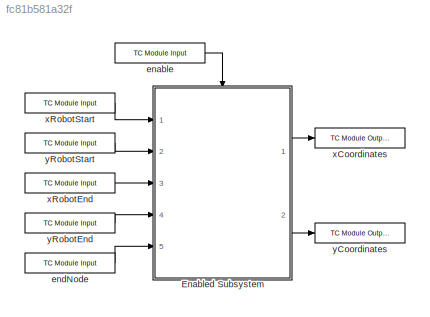
MODEL slx_fc81b581a32f
KIND model
CONFIG AbsTol = auto
CONFIG EnableMultiTasking = off
CONFIG FixedStep = 0.020
CONFIG MaxStep = auto
CONFIG MinStep = auto
CONFIG RelTol = 1e-3
CONFIG SampleTimeConstraint = Unconstrained
CONFIG SolverName = ode1
CONFIG StartTime = 0.0
CONFIG StopTime = Inf
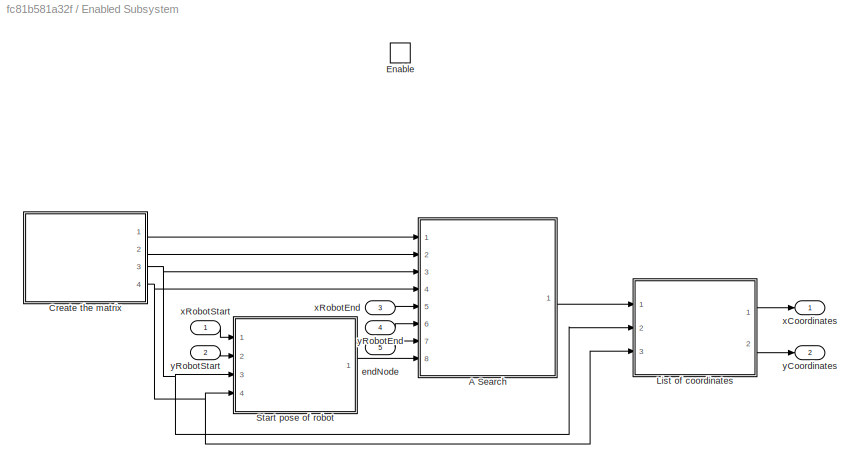
BLOCK [SubSystem] Enabled Subsystem
  Ports = [5, 2, 1]
  RequestExecContextInheritance = off
  TreatAsAtomicUnit = on
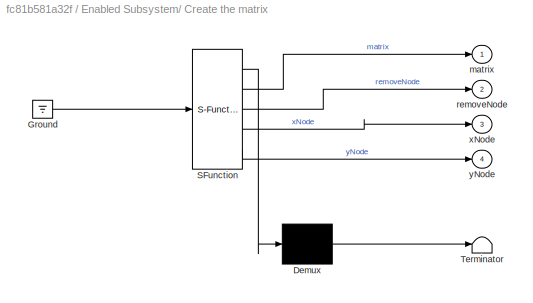
BLOCK [SubSystem] Enabled Subsystem/ Create the matrix
  ErrorFcn = Stateflow.Translate.translate
  PermitHierarchicalResolution = ExplicitOnly
  Ports = [0, 4]
  RequestExecContextInheritance = off
  SFBlockType = MATLAB Function
  TreatAsAtomicUnit = on
BLOCK [Demux] Enabled Subsystem/ Create the matrix/ Demux 
  Outputs = 1
  Ports = [1, 1]
BLOCK [Ground] Enabled Subsystem/ Create the matrix/ Ground 
BLOCK [S-Function] Enabled Subsystem/ Create the matrix/ SFunction 
  EnableBusSupport = on
  FunctionName = sf_sfun
  PortCounts = [1 5]
  Ports = [1, 5]
  SFcnIsStateOwnerBlock = off
  SFunctionDeploymentMode = off
  Tag = Stateflow S-Function 2
BLOCK [Terminator] Enabled Subsystem/ Create the matrix/ Terminator 
BLOCK [Outport] Enabled Subsystem/ Create the matrix/matrix
BLOCK [Outport] Enabled Subsystem/ Create the matrix/removeNode
  Port = 2
BLOCK [Outport] Enabled Subsystem/ Create the matrix/xNode
  Port = 3
BLOCK [Outport] Enabled Subsystem/ Create the matrix/yNode
  Port = 4
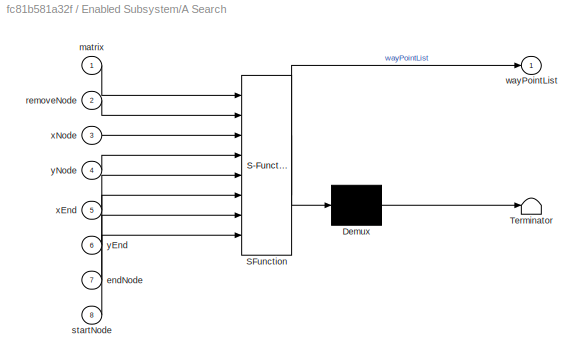
BLOCK [SubSystem] Enabled Subsystem/A Search
  ErrorFcn = Stateflow.Translate.translate
  PermitHierarchicalResolution = ExplicitOnly
  Ports = [8, 1]
  RequestExecContextInheritance = off
  SFBlockType = MATLAB Function
  TreatAsAtomicUnit = on
BLOCK [Demux] Enabled Subsystem/A Search/ Demux 
  Outputs = 1
  Ports = [1, 1]
BLOCK [S-Function] Enabled Subsystem/A Search/ SFunction 
  EnableBusSupport = on
  FunctionName = sf_sfun
  PortCounts = [8 2]
  Ports = [8, 2]
  SFcnIsStateOwnerBlock = off
  SFunctionDeploymentMode = off
  Tag = Stateflow S-Function 3
BLOCK [Terminator] Enabled Subsystem/A Search/ Terminator 
BLOCK [Inport] Enabled Subsystem/A Search/endNode
  Port = 7
BLOCK [Inport] Enabled Subsystem/A Search/matrix
BLOCK [Inport] Enabled Subsystem/A Search/removeNode
  Port = 2
BLOCK [Inport] Enabled Subsystem/A Search/startNode
  Port = 8
BLOCK [Outport] Enabled Subsystem/A Search/wayPointList
BLOCK [Inport] Enabled Subsystem/A Search/xEnd
  Port = 5
BLOCK [Inport] Enabled Subsystem/A Search/xNode
  Port = 3
BLOCK [Inport] Enabled Subsystem/A Search/yEnd
  Port = 6
BLOCK [Inport] Enabled Subsystem/A Search/yNode
  Port = 4
BLOCK [EnablePort] Enabled Subsystem/Enable
  Ports = []
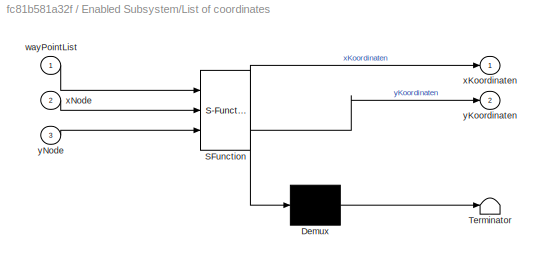
BLOCK [SubSystem] Enabled Subsystem/List of coordinates
  ErrorFcn = Stateflow.Translate.translate
  PermitHierarchicalResolution = ExplicitOnly
  Ports = [3, 2]
  RequestExecContextInheritance = off
  SFBlockType = MATLAB Function
  TreatAsAtomicUnit = on
BLOCK [Demux] Enabled Subsystem/List of coordinates/ Demux 
  Outputs = 1
  Ports = [1, 1]
BLOCK [S-Function] Enabled Subsystem/List of coordinates/ SFunction 
  EnableBusSupport = on
  FunctionName = sf_sfun
  PortCounts = [3 3]
  Ports = [3, 3]
  SFcnIsStateOwnerBlock = off
  SFunctionDeploymentMode = off
  Tag = Stateflow S-Function 4
BLOCK [Terminator] Enabled Subsystem/List of coordinates/ Terminator 
BLOCK [Inport] Enabled Subsystem/List of coordinates/wayPointList
BLOCK [Outport] Enabled Subsystem/List of coordinates/xKoordinaten
BLOCK [Inport] Enabled Subsystem/List of coordinates/xNode
  Port = 2
BLOCK [Outport] Enabled Subsystem/List of coordinates/yKoordinaten
  Port = 2
BLOCK [Inport] Enabled Subsystem/List of coordinates/yNode
  Port = 3
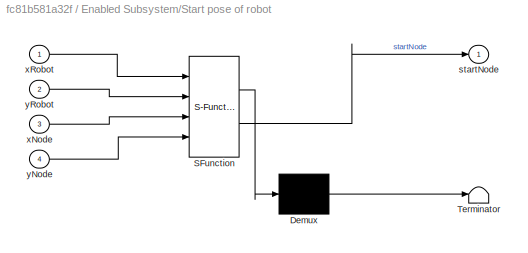
BLOCK [SubSystem] Enabled Subsystem/Start pose of robot
  ErrorFcn = Stateflow.Translate.translate
  PermitHierarchicalResolution = ExplicitOnly
  Ports = [4, 1]
  RequestExecContextInheritance = off
  SFBlockType = MATLAB Function
  TreatAsAtomicUnit = on
BLOCK [Demux] Enabled Subsystem/Start pose of robot/ Demux 
  Outputs = 1
  Ports = [1, 1]
BLOCK [S-Function] Enabled Subsystem/Start pose of robot/ SFunction 
  EnableBusSupport = on
  FunctionName = sf_sfun
  PortCounts = [4 2]
  Ports = [4, 2]
  SFcnIsStateOwnerBlock = off
  SFunctionDeploymentMode = off
  Tag = Stateflow S-Function 1
BLOCK [Terminator] Enabled Subsystem/Start pose of robot/ Terminator 
BLOCK [Outport] Enabled Subsystem/Start pose of robot/startNode
BLOCK [Inport] Enabled Subsystem/Start pose of robot/xNode
  Port = 3
BLOCK [Inport] Enabled Subsystem/Start pose of robot/xRobot
BLOCK [Inport] Enabled Subsystem/Start pose of robot/yNode
  Port = 4
BLOCK [Inport] Enabled Subsystem/Start pose of robot/yRobot
  Port = 2
BLOCK [Inport] Enabled Subsystem/endNode
  Port = 5
BLOCK [Outport] Enabled Subsystem/xCoordinates
BLOCK [Inport] Enabled Subsystem/xRobotEnd
  Port = 3
BLOCK [Inport] Enabled Subsystem/xRobotStart
BLOCK [Outport] Enabled Subsystem/yCoordinates
  Port = 2
BLOCK [Inport] Enabled Subsystem/yRobotEnd
  Port = 4
BLOCK [Inport] Enabled Subsystem/yRobotStart
  Port = 2
BLOCK [Reference] enable  REF=TcTargetLib/TC Module Input
  Ports = [0, 1]
  SourceBlock = TcTargetLib/TC Module Input
  SourceProductName = Beckhoff TwinCAT Target
  SourceType = TC Module Input
BLOCK [Reference] endNode  REF=TcTargetLib/TC Module Input
  Ports = [0, 1]
  SourceBlock = TcTargetLib/TC Module Input
  SourceProductName = Beckhoff TwinCAT Target
  SourceType = TC Module Input
BLOCK [Reference] xCoordinates  REF=TcTargetLib/TC Module Output
  Ports = [1]
  SourceBlock = TcTargetLib/TC Module Output
  SourceProductName = Beckhoff TwinCAT Target
  SourceType = TC Module Output
BLOCK [Reference] xRobotEnd  REF=TcTargetLib/TC Module Input
  Ports = [0, 1]
  SourceBlock = TcTargetLib/TC Module Input
  SourceProductName = Beckhoff TwinCAT Target
  SourceType = TC Module Input
BLOCK [Reference] xRobotStart  REF=TcTargetLib/TC Module Input
  Ports = [0, 1]
  SourceBlock = TcTargetLib/TC Module Input
  SourceProductName = Beckhoff TwinCAT Target
  SourceType = TC Module Input
BLOCK [Reference] yCoordinates  REF=TcTargetLib/TC Module Output
  Ports = [1]
  SourceBlock = TcTargetLib/TC Module Output
  SourceProductName = Beckhoff TwinCAT Target
  SourceType = TC Module Output
BLOCK [Reference] yRobotEnd  REF=TcTargetLib/TC Module Input
  Ports = [0, 1]
  SourceBlock = TcTargetLib/TC Module Input
  SourceProductName = Beckhoff TwinCAT Target
  SourceType = TC Module Input
BLOCK [Reference] yRobotStart  REF=TcTargetLib/TC Module Input
  Ports = [0, 1]
  SourceBlock = TcTargetLib/TC Module Input
  SourceProductName = Beckhoff TwinCAT Target
  SourceType = TC Module Input
LINE Enabled Subsystem/ Create the matrix:1 -> Enabled Subsystem/A Search:1
LINE Enabled Subsystem/ Create the matrix:2 -> Enabled Subsystem/A Search:2
NET Enabled Subsystem/ Create the matrix:3 -> Enabled Subsystem/A Search:3, Enabled Subsystem/List of coordinates:2, Enabled Subsystem/Start pose of robot:3
NET Enabled Subsystem/ Create the matrix:4 -> Enabled Subsystem/A Search:4, Enabled Subsystem/List of coordinates:3, Enabled Subsystem/Start pose of robot:4
LINE Enabled Subsystem/A Search:1 -> Enabled Subsystem/List of coordinates:1
LINE Enabled Subsystem/List of coordinates:1 -> Enabled Subsystem/xCoordinates:1
LINE Enabled Subsystem/List of coordinates:2 -> Enabled Subsystem/yCoordinates:1
LINE Enabled Subsystem/Start pose of robot:1 -> Enabled Subsystem/A Search:8
LINE Enabled Subsystem/endNode:1 -> Enabled Subsystem/A Search:7
LINE Enabled Subsystem/xRobotEnd:1 -> Enabled Subsystem/A Search:5
LINE Enabled Subsystem/xRobotStart:1 -> Enabled Subsystem/Start pose of robot:1
LINE Enabled Subsystem/yRobotEnd:1 -> Enabled Subsystem/A Search:6
LINE Enabled Subsystem/yRobotStart:1 -> Enabled Subsystem/Start pose of robot:2
LINE Enabled Subsystem:1 -> xCoordinates:1
LINE Enabled Subsystem:2 -> yCoordinates:1
LINE enable:1 -> Enabled Subsystem:enable
LINE endNode:1 -> Enabled Subsystem:5
LINE xRobotEnd:1 -> Enabled Subsystem:3
LINE xRobotStart:1 -> Enabled Subsystem:1
LINE yRobotEnd:1 -> Enabled Subsystem:4
LINE yRobotStart:1 -> Enabled Subsystem:2
note: NET lines group one-source signal fan-out (src -> all destinations, sorted); 1:1 wires keep LINE
CHART Enabled
Subsystem/Start pose of robot states=1 transitions=1
  STATE_LABEL 'eML_blk_kernel()'
  STATE_LABEL 'SCRIPT:\nfunction startNode= fcn(xRobot, yRobot, xNode, yNode)\n\nstartNode = 0;\nstartNodeArray = 0;\ndiff_x = zeros(size(xNode,1),1);\ndiff_y = zeros(size(yNode,1),1);\n\nfor i = 1:size(xNode,1)\n    diff_x(i) = abs(xRobot-xNode(i));\nend\n\nfor i = 1:size(yNode,1)\n    diff_y(i) = abs(yRobot-yNode(i));\nend\n\nxMin = min(diff_x);\nyMin = min(diff_y);\n\nxStart = find(diff_x == xMin);\nyStart = find(diff_y == yMin)...<+82ch>'
CHART Enabled
Subsystem/ Create the matrix states=1 transitions=1
  STATE_LABEL 'eML_blk_kernel()'
  STATE_LABEL 'SCRIPT:\nfunction [matrix, removeNode, xNode, yNode] = fcn()\n\nnumberOfNodes = 144;\nnumberOfColumns = 18;\nmatrix = zeros(numberOfNodes);\n\n% Verbindung zu relevanten Knoten\nfor i = 1:numberOfNodes\n    if i-1>0 && mod(i, numberOfColumns) ~= 1\n        matrix(i-1,i) = 1000;\n    end\n    if i+1<numberOfNodes+1 && mod(i,numberOfColumns) ~= 0\n        matrix(i+1,i)= 1000;\n    end\n    if i+numberOfColumns<num...<+1220ch>'
CHART Enabled
Subsystem/A Search states=1 transitions=1
  STATE_LABEL 'eML_blk_kernel()'
  STATE_LABEL 'SCRIPT:\nfunction wayPointList = fcn(matrix, removeNode, xNode, yNode, xEnd, yEnd, endNode, startNode)\nnumNodes = 144;\nopenList = zeros(8,5); %1. Node 2. g(x) 3. h(x) 4. f(x) 5. parent node\nclosedList = zeros(101,5); %1. Node 2. g(x) 3. h(x) 4. f(x) 5. parent node\nneighborList = zeros(8,5); %1. Node 2. g(x) 3. h(x) 4. f(x) 5. parent node\nstep = 1;\nindex = 1;\noverlap = false;\nnodefmin = 0;\ncurrentNo...<+3177ch>'
CHART Enabled
Subsystem/List of coordinates states=1 transitions=1
  STATE_LABEL 'eML_blk_kernel()'
  STATE_LABEL 'SCRIPT:\nfunction [xKoordinaten, yKoordinaten]= fcn(wayPointList, xNode, yNode)\n\nsizeList = size(wayPointList,1);\nxKoordinaten = zeros(sizeList,1);\nyKoordinaten = zeros(sizeList,1);\n\nfor i = 1 : sizeList\n    if wayPointList(i) ~= 0\n        xKoordinaten(i) = xNode(wayPointList(i));\n        yKoordinaten(i) = yNode(wayPointList(i));\n    end\nend\n\n'
CHART  states=0 transitions=0
CHART  states=0 transitions=0
CHART  states=0 transitions=0
CHART  states=0 transitions=0
